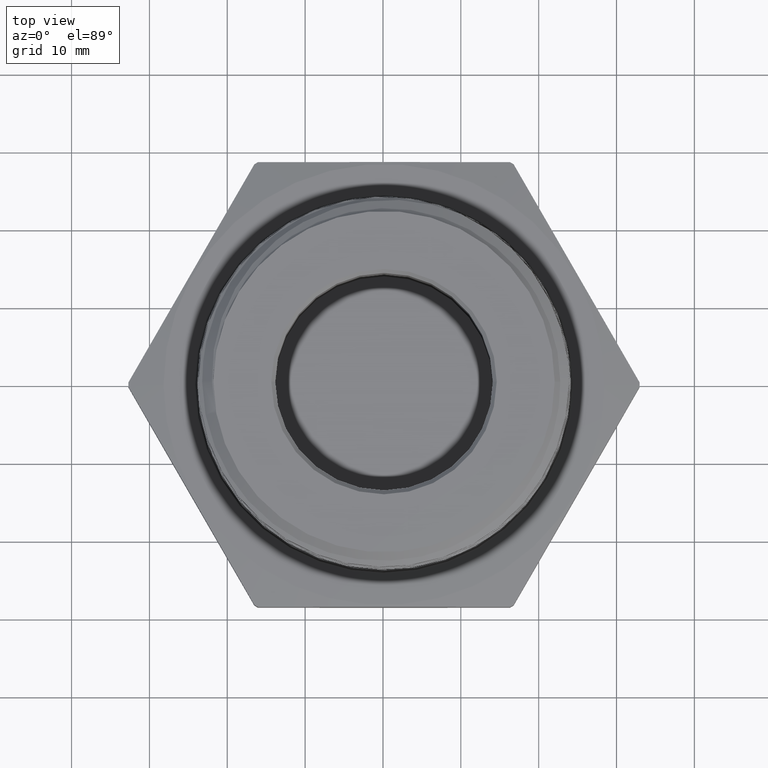
[diagram: clean part render]
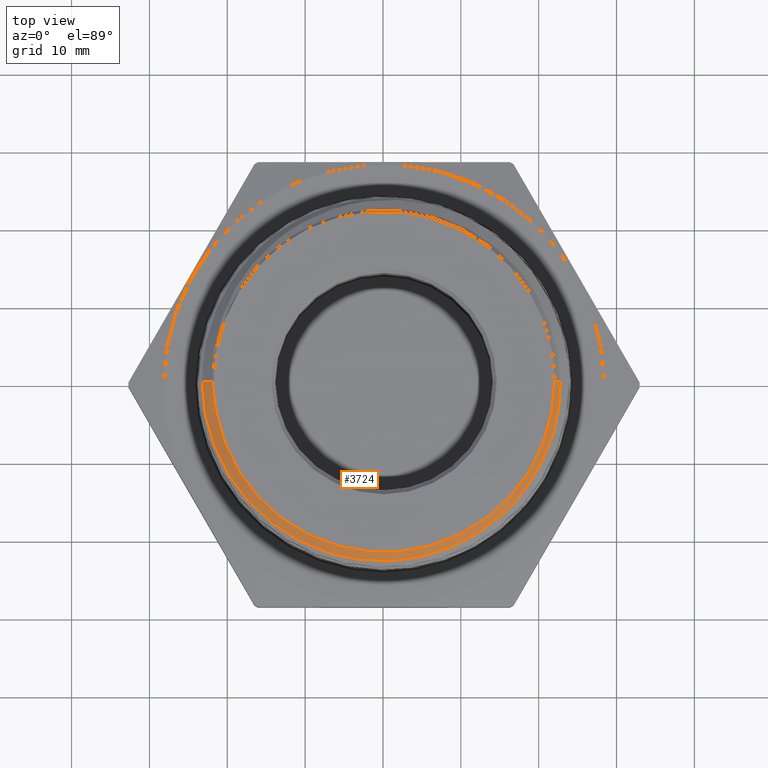
[diagram: same view with one face highlighted and labeled with its STEP entity id]
A machine part, top view. The second image highlights one B-rep face of the part: STEP entity #3724.
In plain terms, the highlighted conical surface has half-angle 45 deg.
Its self-contained STEP definition (entity closure, byte-faithful):
#1515 = CARTESIAN_POINT ( 'NONE',  ( -0.8643657824945850700, -4.375459215454498700E-013, 1.108884217505413200 ) ) ;
#1528 = CARTESIAN_POINT ( 'NONE',  ( -0.8530194511769035900, -0.1392291090995811700, 1.108942804087104300 ) ) ;
#1541 = CARTESIAN_POINT ( 'NONE',  ( -0.8632499999999979600, 0.0000000000000000000, 1.110000000000000100 ) ) ;
#1829 = DIRECTION ( 'NONE',  ( -1.000000000000000000, 0.0000000000000000000, 0.0000000000000000000 ) ) ;
#1830 = CARTESIAN_POINT ( 'NONE',  ( 0.0000000000000000000, 0.0000000000000000000, 1.031859447964342400 ) ) ;
#1831 = DIRECTION ( 'NONE',  ( -0.0000000000000000000, -0.0000000000000000000, -1.000000000000000000 ) ) ;
#2811 = VERTEX_POINT ( 'NONE', #6118 ) ;
#2812 = VERTEX_POINT ( 'NONE', #6119 ) ;
#2820 = VERTEX_POINT ( 'NONE', #6127 ) ;
#2825 = VERTEX_POINT ( 'NONE', #6132 ) ;
#2845 = VERTEX_POINT ( 'NONE', #1515 ) ;
#2858 = VERTEX_POINT ( 'NONE', #1528 ) ;
#2871 = VERTEX_POINT ( 'NONE', #1541 ) ;
#2983 = ORIENTED_EDGE ( 'NONE', *, *, #5363, .F. ) ;
#2984 = ORIENTED_EDGE ( 'NONE', *, *, #5367, .T. ) ;
#2985 = ORIENTED_EDGE ( 'NONE', *, *, #5366, .T. ) ;
#2986 = ORIENTED_EDGE ( 'NONE', *, *, #5368, .T. ) ;
#2987 = ORIENTED_EDGE ( 'NONE', *, *, #5369, .T. ) ;
#2988 = ORIENTED_EDGE ( 'NONE', *, *, #5370, .T. ) ;
#2989 = ORIENTED_EDGE ( 'NONE', *, *, #5371, .T. ) ;
#3051 = EDGE_LOOP ( 'NONE', ( #2983, #2984, #2985, #2986, #2987, #2988, #2989 ) ) ;
#3205 = FACE_OUTER_BOUND ( 'NONE', #3051, .T. ) ;
#3210 = CONICAL_SURFACE ( 'NONE', #4644, 0.9413905520356563600, 0.7853981633974536100 ) ;
#3321 = LINE ( 'NONE', #7164, #3326 ) ;
#3324 = CIRCLE ( 'NONE', #4696, 0.8632499999999979600 ) ;
#3325 = LINE ( 'NONE', #7225, #3328 ) ;
#3326 = VECTOR ( 'NONE', #7157, 39.37007874015748100 ) ;
#3328 = VECTOR ( 'NONE', #7226, 39.37007874015748100 ) ;
#3329 = LINE ( 'NONE', #7239, #3331 ) ;
#3331 = VECTOR ( 'NONE', #7240, 39.37007874015748100 ) ;
#3724 = ADVANCED_FACE ( 'NONE', ( #3205 ), #3210, .T. ) ;
#4644 = AXIS2_PLACEMENT_3D ( 'NONE', #1830, #1831, #1829 ) ;
#4696 = AXIS2_PLACEMENT_3D ( 'NONE', #7229, #7230, #7231 ) ;
#5363 = EDGE_CURVE ( 'NONE', #2825, #2820, #3321, .T. ) ;
#5366 = EDGE_CURVE ( 'NONE', #2871, #2845, #3325, .T. ) ;
#5367 = EDGE_CURVE ( 'NONE', #2825, #2871, #3324, .T. ) ;
#5368 = EDGE_CURVE ( 'NONE', #2845, #2858, #6169, .T. ) ;
#5369 = EDGE_CURVE ( 'NONE', #2858, #2812, #6170, .T. ) ;
#5370 = EDGE_CURVE ( 'NONE', #2812, #2811, #3329, .T. ) ;
#5371 = EDGE_CURVE ( 'NONE', #2811, #2820, #6171, .T. ) ;
#6118 = CARTESIAN_POINT ( 'NONE',  ( -0.9195725450993473800, -6.610511901342653800E-013, 1.053677454900650900 ) ) ;
#6119 = CARTESIAN_POINT ( 'NONE',  ( -0.8695252292204441700, -2.194191694864499500E-014, 1.103724770779553700 ) ) ;
#6127 = CARTESIAN_POINT ( 'NONE',  ( 0.8915989249177868100, 1.469551487423585300E-015, 1.081651075082210600 ) ) ;
#6132 = CARTESIAN_POINT ( 'NONE',  ( 0.8632499999999979600, 1.091870887325552800E-016, 1.110000000000000100 ) ) ;
#6169 = B_SPLINE_CURVE_WITH_KNOTS ( 'NONE', 3,
 ( #7227, #7228, #7233, #7234 ),
 .UNSPECIFIED., .F., .F.,
 ( 4, 4 ),
 ( 0.001896773907974763800, 0.005450279853944362900 ),
 .UNSPECIFIED. ) ;
#6170 = B_SPLINE_CURVE_WITH_KNOTS ( 'NONE', 3,
 ( #7222, #7232, #7237, #7238 ),
 .UNSPECIFIED., .F., .F.,
 ( 4, 4 ),
 ( 4.336808689942017700E-019, 0.003563377235288966600 ),
 .UNSPECIFIED. ) ;
#6171 = B_SPLINE_CURVE_WITH_KNOTS ( 'NONE', 3,
 ( #7236, #7235, #7243, #7244, #7245, #7246, #7247, #7248, #7249, #7250, #7251, #7252, #7253, #7254, #7255, #7256, #7257, #7258, #7259, #7260, #7261, #7262, #7263, #7264, #7265, #7266, #7267, #7268, #7269, #7270, #7271, #7272, #7273, #7274, #7275, #7276, #7277, #7278, #7279, #7280, #7281, #7282, #7283, #7284, #7285, #7286, #7287, #7288, #7289, #7290, #7291, #7292, #7293, #7294, #7295, #7296, #7297, #7298, #7299, #7300, #7301, #7302, #7303, #7304 ),
 .UNSPECIFIED., .F., .F.,
 ( 4, 2, 2, 2, 2, 2, 2, 2, 2, 2, 2, 2, 2, 2, 2, 2, 2, 2, 2, 2, 2, 2, 2, 2, 2, 2, 2, 2, 2, 2, 2, 4 ),
 ( 0.03877842471944030500, 0.04104853696971460400, 0.04331864921998890300, 0.04558876147026320900, 0.04672381759540035500, 0.04785887372053750800, 0.05239909822108610600, 0.05353415434622325200, 0.05466921047136040500, 0.05693932272163469700, 0.06147954722218330200, 0.06261460334732045500, 0.06374965947245760100, 0.06601977172273190700, 0.06828988397300619900, 0.06942494009814335900, 0.07055999622328050500, 0.07510022072382910300, 0.07737033297410339500, 0.07850538909924054100, 0.07964044522437768700, 0.08418066972492629900, 0.08645078197520059100, 0.08872089422547488300, 0.09326111872602348100, 0.09553123097629778700, 0.09780134322657209300, 0.1000714554768464000, 0.1023415677271206900, 0.1068817922276693000, 0.1091519044779436000, 0.1114220167282178900 ),
 .UNSPECIFIED. ) ;
#7157 = DIRECTION ( 'NONE',  ( 0.7071067811865512400, 8.659560562354978500E-017, -0.7071067811865438000 ) ) ;
#7164 = CARTESIAN_POINT ( 'NONE',  ( 0.9413905520356563600, 1.152870926298026500E-016, 1.031859447964342400 ) ) ;
#7222 = CARTESIAN_POINT ( 'NONE',  ( -0.8530194511769035900, -0.1392291090995811700, 1.108942804087104300 ) ) ;
#7225 = CARTESIAN_POINT ( 'NONE',  ( -0.9413905520356563600, 0.0000000000000000000, 1.031859447964342400 ) ) ;
#7226 = DIRECTION ( 'NONE',  ( -0.7071067811865512400, 0.0000000000000000000, -0.7071067811865438000 ) ) ;
#7227 = CARTESIAN_POINT ( 'NONE',  ( -0.8643657824945850700, -4.375459215454498700E-013, 1.108884217505413200 ) ) ;
#7228 = CARTESIAN_POINT ( 'NONE',  ( -0.8643466272282990200, -0.04661827149481797400, 1.108903372771675500 ) ) ;
#7229 = CARTESIAN_POINT ( 'NONE',  ( 0.0000000000000000000, 0.0000000000000000000, 1.110000000000000100 ) ) ;
#7230 = DIRECTION ( 'NONE',  ( -0.0000000000000000000, -0.0000000000000000000, -1.000000000000000000 ) ) ;
#7231 = DIRECTION ( 'NONE',  ( -1.000000000000000000, 0.0000000000000000000, 0.0000000000000000000 ) ) ;
#7232 = CARTESIAN_POINT ( 'NONE',  ( -0.8623065098092341800, -0.09322131185730903000, 1.107188315586842700 ) ) ;
#7233 = CARTESIAN_POINT ( 'NONE',  ( -0.8605478432202257100, -0.09320648420630336900, 1.108926402759601300 ) ) ;
#7234 = CARTESIAN_POINT ( 'NONE',  ( -0.8530194511769035900, -0.1392291090995811700, 1.108942804087104300 ) ) ;
#7235 = CARTESIAN_POINT ( 'NONE',  ( -0.9192835087421626900, -0.02984967946580843100, 1.053966491257814200 ) ) ;
#7236 = CARTESIAN_POINT ( 'NONE',  ( -0.9195725450993473800, -6.610511901342653800E-013, 1.053677454900650900 ) ) ;
#7237 = CARTESIAN_POINT ( 'NONE',  ( -0.8677885328387975300, -0.04680903078692807300, 1.105461467161198900 ) ) ;
#7238 = CARTESIAN_POINT ( 'NONE',  ( -0.8695252292204441700, -2.194191694864499500E-014, 1.103724770779553700 ) ) ;
#7239 = CARTESIAN_POINT ( 'NONE',  ( -0.9413905520356563600, 0.0000000000000000000, 1.031859447964342400 ) ) ;
#7240 = DIRECTION ( 'NONE',  ( -0.7071067811865512400, 0.0000000000000000000, -0.7071067811865438000 ) ) ;
#7243 = CARTESIAN_POINT ( 'NONE',  ( -0.9175286865564370500, -0.05974793677539531200, 1.054257566102310600 ) ) ;
#7244 = CARTESIAN_POINT ( 'NONE',  ( -0.9111854259827022500, -0.1187949224287051200, 1.054833155056254900 ) ) ;
#7245 = CARTESIAN_POINT ( 'NONE',  ( -0.9065994057235525800, -0.1480495642411282500, 1.055118708279106900 ) ) ;
#7246 = CARTESIAN_POINT ( 'NONE',  ( -0.8946178076075617100, -0.2060247254659573500, 1.055692850772404600 ) ) ;
#7247 = CARTESIAN_POINT ( 'NONE',  ( -0.8872220878550866100, -0.2347452157499186900, 1.055981657432647900 ) ) ;
#7248 = CARTESIAN_POINT ( 'NONE',  ( -0.8739830303305764500, -0.2774180922534924000, 1.056415581519434000 ) ) ;
#7249 = CARTESIAN_POINT ( 'NONE',  ( -0.8691979283431220400, -0.2916099999296809500, 1.056560787197939700 ) ) ;
#7250 = CARTESIAN_POINT ( 'NONE',  ( -0.8589817917352629000, -0.3196275913860688300, 1.056849870209152900 ) ) ;
#7251 = CARTESIAN_POINT ( 'NONE',  ( -0.8535511862060872800, -0.3334596633192087900, 1.056993807968803000 ) ) ;
#7252 = CARTESIAN_POINT ( 'NONE',  ( -0.8248126383890488400, -0.4017512545865742900, 1.057713590336331900 ) ) ;
#7253 = CARTESIAN_POINT ( 'NONE',  ( -0.7967962638585306400, -0.4536308905286711700, 1.058285187391246900 ) ) ;
#7254 = CARTESIAN_POINT ( 'NONE',  ( -0.7555069164470645800, -0.5150454137101387900, 1.059005263854958500 ) ) ;
#7255 = CARTESIAN_POINT ( 'NONE',  ( -0.7469323994911059000, -0.5271548062015921600, 1.059150072267867500 ) ) ;
#7256 = CARTESIAN_POINT ( 'NONE',  ( -0.7291397757973220300, -0.5510209318975578500, 1.059440742655814100 ) ) ;
#7257 = CARTESIAN_POINT ( 'NONE',  ( -0.7198950728874192700, -0.5628085261247191000, 1.059586977942431800 ) ) ;
#7258 = CARTESIAN_POINT ( 'NONE',  ( -0.6914396829151033800, -0.5973135622038088200, 1.060023091713369500 ) ) ;
#7259 = CARTESIAN_POINT ( 'NONE',  ( -0.6714869409039682100, -0.6192214055530413900, 1.060310578639780000 ) ) ;
#7260 = CARTESIAN_POINT ( 'NONE',  ( -0.6087608520143188400, -0.6817469804751279400, 1.061173892963058500 ) ) ;
#7261 = CARTESIAN_POINT ( 'NONE',  ( -0.5631479281269792200, -0.7191983276824450700, 1.061748577183316400 ) ) ;
#7262 = CARTESIAN_POINT ( 'NONE',  ( -0.5012557167527182900, -0.7605751137966479900, 1.062475543247431100 ) ) ;
#7263 = CARTESIAN_POINT ( 'NONE',  ( -0.4885978444859737600, -0.7685941989410363100, 1.062622295110270800 ) ) ;
#7264 = CARTESIAN_POINT ( 'NONE',  ( -0.4630343459231092100, -0.7839209848401835800, 1.062914437359592900 ) ) ;
#7265 = CARTESIAN_POINT ( 'NONE',  ( -0.4501111823015268600, -0.7912427953815127600, 1.063060002042347100 ) ) ;
#7266 = CARTESIAN_POINT ( 'NONE',  ( -0.4109251454022908600, -0.8122020755568221100, 1.063495051957841400 ) ) ;
#7267 = CARTESIAN_POINT ( 'NONE',  ( -0.3842468110229819700, -0.8248360221900337100, 1.063782592899838300 ) ) ;
#7268 = CARTESIAN_POINT ( 'NONE',  ( -0.3297951217166119100, -0.8474587780362852200, 1.064359416886328000 ) ) ;
#7269 = CARTESIAN_POINT ( 'NONE',  ( -0.3020214446302816900, -0.8574467866283183000, 1.064649571491322700 ) ) ;
#7270 = CARTESIAN_POINT ( 'NONE',  ( -0.2595284433073706300, -0.8704178617535114300, 1.065085386404153000 ) ) ;
#7271 = CARTESIAN_POINT ( 'NONE',  ( -0.2452251000068418600, -0.8744057632610449100, 1.065230803598427300 ) ) ;
#7272 = CARTESIAN_POINT ( 'NONE',  ( -0.2163351881431884200, -0.8816973962485449300, 1.065522461188559400 ) ) ;
#7273 = CARTESIAN_POINT ( 'NONE',  ( -0.2017187560229462800, -0.8850054648988483500, 1.065668996507304100 ) ) ;
#7274 = CARTESIAN_POINT ( 'NONE',  ( -0.1286952926110476500, -0.8996476951980950700, 1.066398948662444100 ) ) ;
#7275 = CARTESIAN_POINT ( 'NONE',  ( -0.06995979657416934200, -0.9054953497791912200, 1.066977236280741300 ) ) ;
#7276 = CARTESIAN_POINT ( 'NONE',  ( 0.01860625636590149800, -0.9056931321959832400, 1.067846900466066700 ) ) ;
#7277 = CARTESIAN_POINT ( 'NONE',  ( 0.04820605689318156800, -0.9043177111145233000, 1.068139308782275500 ) ) ;
#7278 = CARTESIAN_POINT ( 'NONE',  ( 0.09272587540383557500, -0.9000291283731787200, 1.068579742895456200 ) ) ;
#7279 = CARTESIAN_POINT ( 'NONE',  ( 0.1075991742965443500, -0.8982236755007206900, 1.068727036232900700 ) ) ;
#7280 = CARTESIAN_POINT ( 'NONE',  ( 0.1370559039124841500, -0.8939070920470683100, 1.069019582212581000 ) ) ;
#7281 = CARTESIAN_POINT ( 'NONE',  ( 0.1516801712782357400, -0.8913929801746314200, 1.069165239601306300 ) ) ;
#7282 = CARTESIAN_POINT ( 'NONE',  ( 0.2242889439039110800, -0.8770705044141713400, 1.069893396871559200 ) ) ;
#7283 = CARTESIAN_POINT ( 'NONE',  ( 0.2807510875805287500, -0.8600587145508594700, 1.070473317551455800 ) ) ;
#7284 = CARTESIAN_POINT ( 'NONE',  ( 0.3629919514744656100, -0.8261592952974383700, 1.071350209989118600 ) ) ;
#7285 = CARTESIAN_POINT ( 'NONE',  ( 0.3901390604155372000, -0.8133654821726293800, 1.071647509890095300 ) ) ;
#7286 = CARTESIAN_POINT ( 'NONE',  ( 0.4426308752444992300, -0.7853595762233741600, 1.072235620644143900 ) ) ;
#7287 = CARTESIAN_POINT ( 'NONE',  ( 0.4680125084185046100, -0.7701540142510988600, 1.072526620812979100 ) ) ;
#7288 = CARTESIAN_POINT ( 'NONE',  ( 0.5416221359841948400, -0.7210097559546705400, 1.073400915534619600 ) ) ;
#7289 = CARTESIAN_POINT ( 'NONE',  ( 0.5873408241269430000, -0.6835795909958469800, 1.073984029256548800 ) ) ;
#7290 = CARTESIAN_POINT ( 'NONE',  ( 0.6506841192006290700, -0.6201509103439768500, 1.074871337694058400 ) ) ;
#7291 = CARTESIAN_POINT ( 'NONE',  ( 0.6706426538278101900, -0.5980509941205788300, 1.075167510566628500 ) ) ;
#7292 = CARTESIAN_POINT ( 'NONE',  ( 0.7080797687773463500, -0.5522643334070089800, 1.075754345397545100 ) ) ;
#7293 = CARTESIAN_POINT ( 'NONE',  ( 0.7256004046981814300, -0.5285353918457613700, 1.076045531748164500 ) ) ;
#7294 = CARTESIAN_POINT ( 'NONE',  ( 0.7582590248632123900, -0.4794155751433980500, 1.076630631150583600 ) ) ;
#7295 = CARTESIAN_POINT ( 'NONE',  ( 0.7733965398321225300, -0.4540243808546231600, 1.076925217182836500 ) ) ;
#7296 = CARTESIAN_POINT ( 'NONE',  ( 0.8012387734590188400, -0.4015450652289838700, 1.077515786317518700 ) ) ;
#7297 = CARTESIAN_POINT ( 'NONE',  ( 0.8139765805344074700, -0.3743410993031260900, 1.077812865472037800 ) ) ;
#7298 = CARTESIAN_POINT ( 'NONE',  ( 0.8476733058376139100, -0.2918877891420864100, 1.078698361857924200 ) ) ;
#7299 = CARTESIAN_POINT ( 'NONE',  ( 0.8644592199842607800, -0.2353443447747116900, 1.079283273413825600 ) ) ;
#7300 = CARTESIAN_POINT ( 'NONE',  ( 0.8811988599983186000, -0.1481892769625747800, 1.080167448484452600 ) ) ;
#7301 = CARTESIAN_POINT ( 'NONE',  ( 0.8853685047735351300, -0.1186487447499518400, 1.080465900304416600 ) ) ;
#7302 = CARTESIAN_POINT ( 'NONE',  ( 0.8907244818738639900, -0.05917161181057932500, 1.081061725560510400 ) ) ;
#7303 = CARTESIAN_POINT ( 'NONE',  ( 0.8918938957856072900, -0.02953587628416304600, 1.081356104214391300 ) ) ;
#7304 = CARTESIAN_POINT ( 'NONE',  ( 0.8915989249177868100, 1.469551487423585300E-015, 1.081651075082210600 ) ) ;